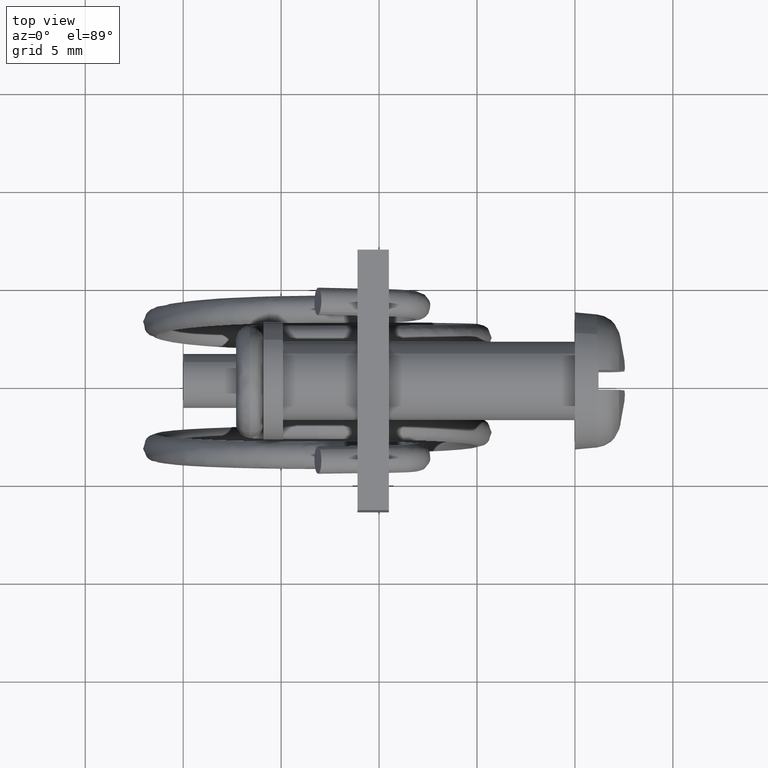
[diagram: clean part render]
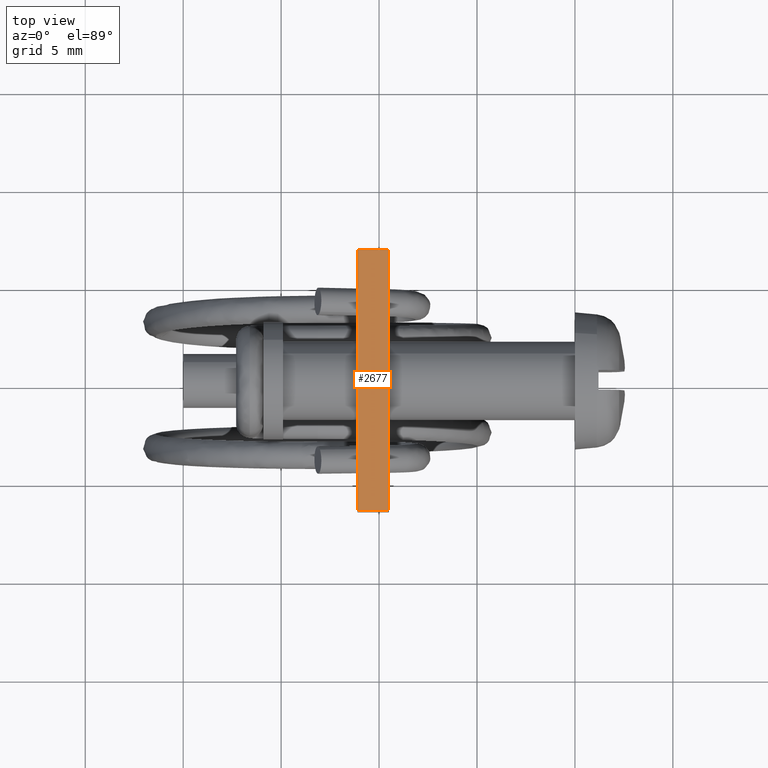
[diagram: same view with one face highlighted and labeled with its STEP entity id]
A machine part, top view. The second image highlights one B-rep face of the part: STEP entity #2677.
In plain terms, the highlighted face is a freeform B-spline surface patch.
Its self-contained STEP definition (entity closure, byte-faithful):
#2536=CARTESIAN_POINT('',(-9.500000000000000,6.650000000000000,3.249999999999900));
#2537=VERTEX_POINT('',#2536);
#2543=CARTESIAN_POINT('',(-9.500000000000000,-6.650000000000000,3.249999999999900));
#2544=VERTEX_POINT('',#2543);
#2545=CARTESIAN_POINT('',(-9.500000000000000,6.650000000000000,3.249999999999900));
#2546=CARTESIAN_POINT('',(-9.500000000000000,-6.650000000000000,3.249999999999900));
#2547=QUASI_UNIFORM_CURVE('',1,(#2545,#2546),.UNSPECIFIED.,.F.,.U.);
#2548=EDGE_CURVE('',#2537,#2544,#2547,.T.);
#2596=CARTESIAN_POINT('',(-11.100000000000000,-6.650000000000000,3.249999999999900));
#2597=VERTEX_POINT('',#2596);
#2603=CARTESIAN_POINT('',(-11.100000000000000,6.650000000000000,3.249999999999900));
#2604=VERTEX_POINT('',#2603);
#2605=CARTESIAN_POINT('',(-11.100000000000000,6.650000000000000,3.249999999999900));
#2606=CARTESIAN_POINT('',(-11.100000000000000,-6.650000000000000,3.249999999999900));
#2607=QUASI_UNIFORM_CURVE('',1,(#2605,#2606),.UNSPECIFIED.,.F.,.U.);
#2608=EDGE_CURVE('',#2604,#2597,#2607,.T.);
#2648=CARTESIAN_POINT('',(-11.100000000000000,-6.650000000000000,3.249999999999900));
#2649=CARTESIAN_POINT('',(-9.500000000000000,-6.650000000000000,3.249999999999900));
#2650=QUASI_UNIFORM_CURVE('',1,(#2648,#2649),.UNSPECIFIED.,.F.,.U.);
#2651=EDGE_CURVE('',#2597,#2544,#2650,.T.);
#2662=CARTESIAN_POINT('',(-11.179919996898890,-7.314334974222019,3.249999999999900));
#2663=CARTESIAN_POINT('',(-9.420079960185767,-7.314334974222019,3.249999999999900));
#2664=CARTESIAN_POINT('',(-11.179919996898890,7.314335330955819,3.249999999999900));
#2665=CARTESIAN_POINT('',(-9.420079960185767,7.314335330955819,3.249999999999900));
#2666=B_SPLINE_SURFACE_WITH_KNOTS('',1,1,((#2662,#2664),(#2663,#2665)),.UNSPECIFIED.,.F.,.F.,.U.,(2,2),(2,2),(0.041708334948495,0.958291687403247),(0.0,14.628670305177840),.UNSPECIFIED.);
#2667=ORIENTED_EDGE('',*,*,#2548,.F.);
#2668=CARTESIAN_POINT('',(-11.100000000000000,6.650000000000000,3.249999999999900));
#2669=CARTESIAN_POINT('',(-9.500000000000000,6.650000000000000,3.249999999999900));
#2670=QUASI_UNIFORM_CURVE('',1,(#2668,#2669),.UNSPECIFIED.,.F.,.U.);
#2671=EDGE_CURVE('',#2604,#2537,#2670,.T.);
#2672=ORIENTED_EDGE('',*,*,#2671,.F.);
#2673=ORIENTED_EDGE('',*,*,#2608,.T.);
#2674=ORIENTED_EDGE('',*,*,#2651,.T.);
#2675=EDGE_LOOP('',(#2667,#2672,#2673,#2674));
#2676=FACE_OUTER_BOUND('',#2675,.T.);
#2677=ADVANCED_FACE('',(#2676),#2666,.T.);